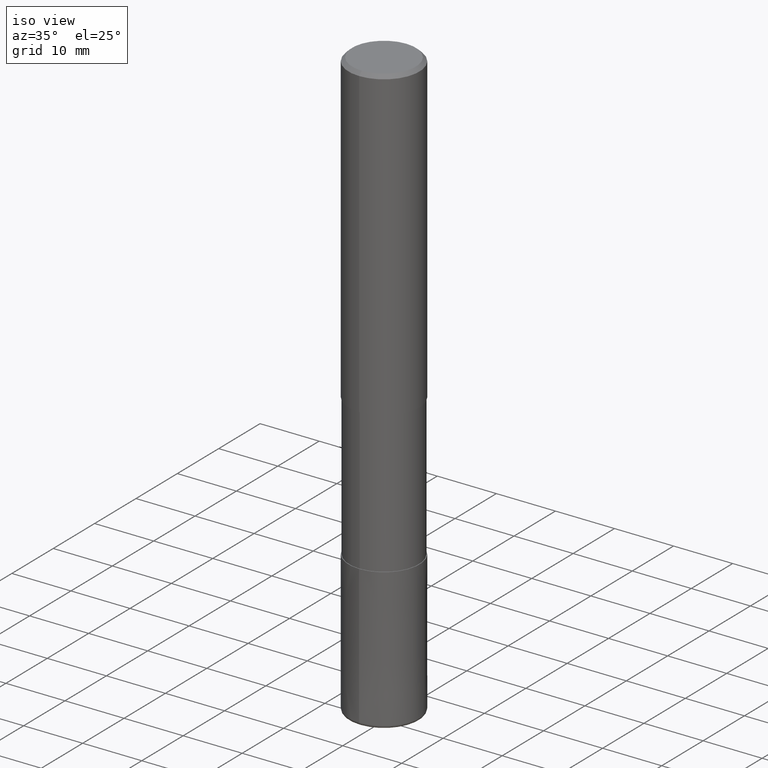
[diagram: clean part render]
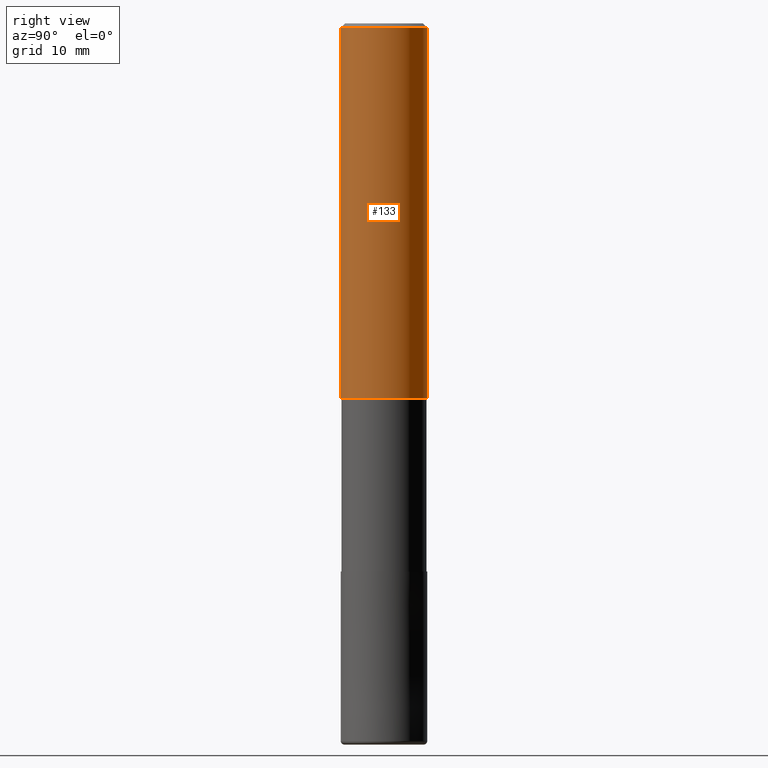
[diagram: tour spotlight — one face highlighted and labeled with its STEP entity id]
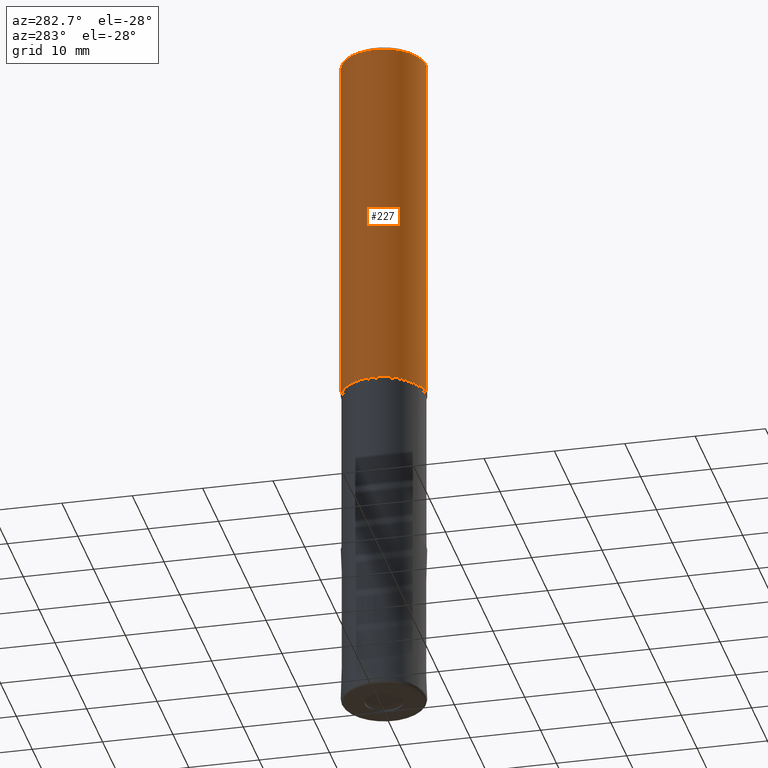
[diagram: tour spotlight — one face highlighted and labeled with its STEP entity id]
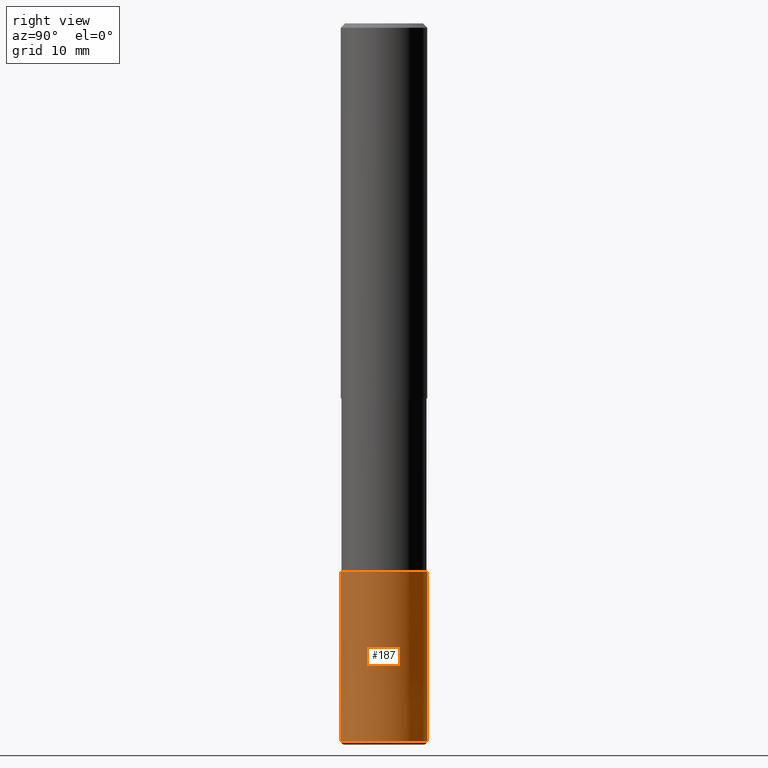
[diagram: tour spotlight — one face highlighted and labeled with its STEP entity id]
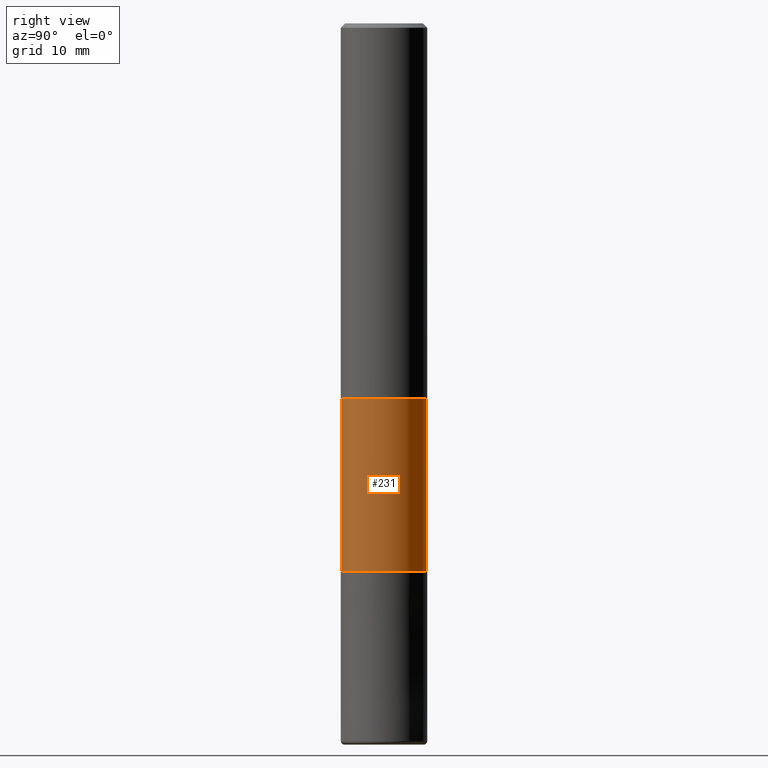
[diagram: tour spotlight — one face highlighted and labeled with its STEP entity id]
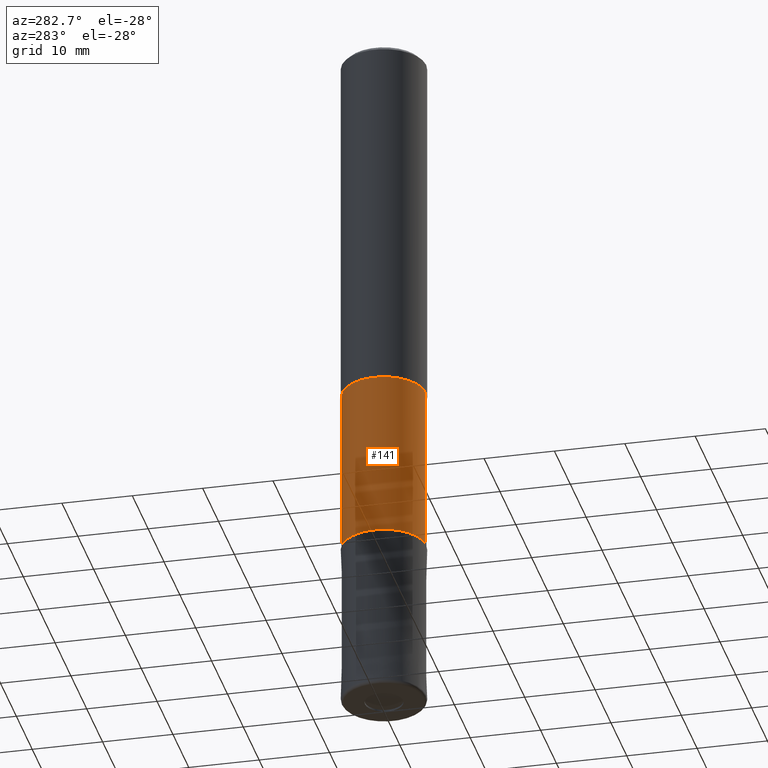
[diagram: tour spotlight — one face highlighted and labeled with its STEP entity id]
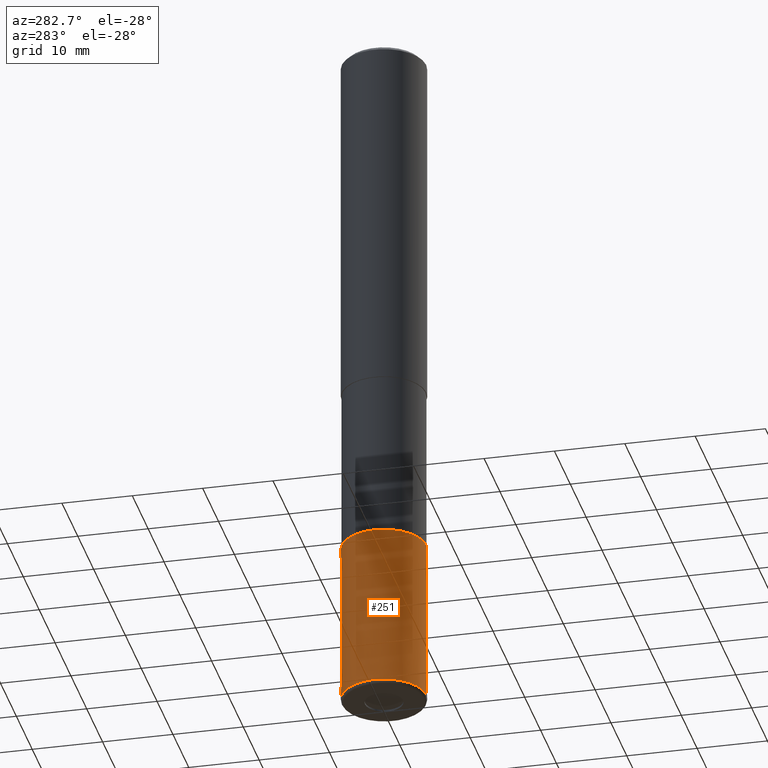
[diagram: tour spotlight — one face highlighted and labeled with its STEP entity id]
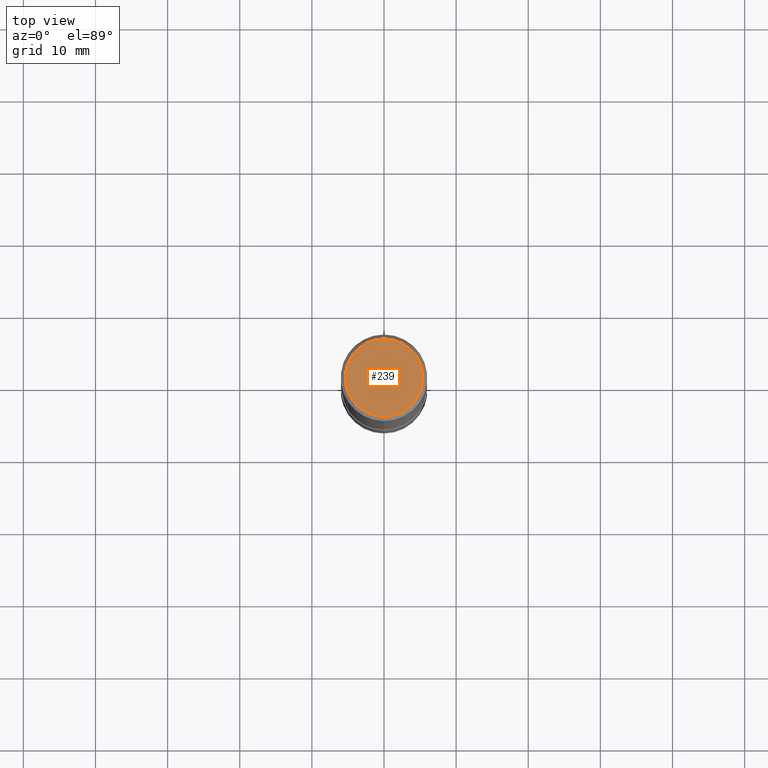
[diagram: tour spotlight — one face highlighted and labeled with its STEP entity id]
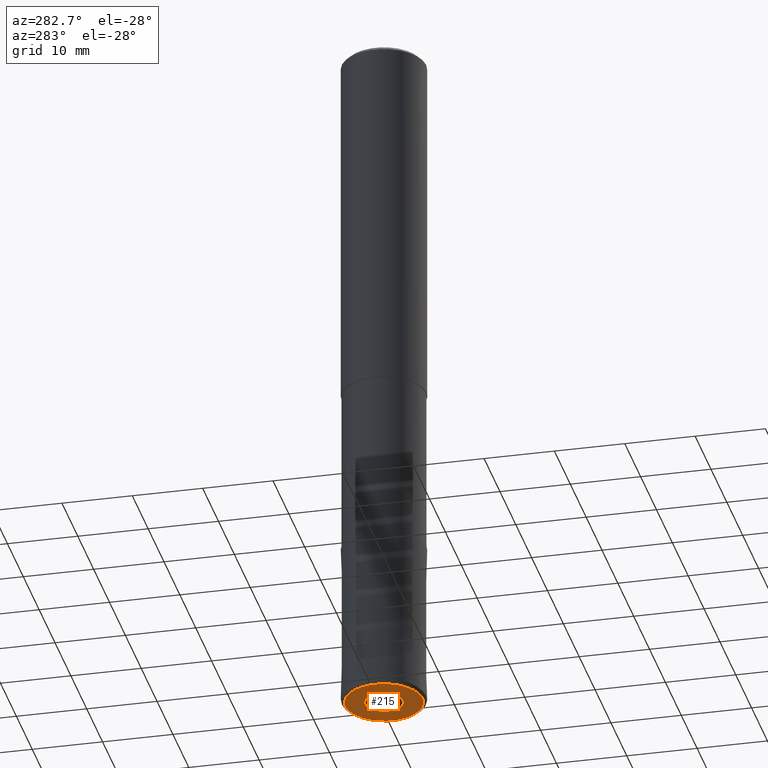
[diagram: tour spotlight — one face highlighted and labeled with its STEP entity id]
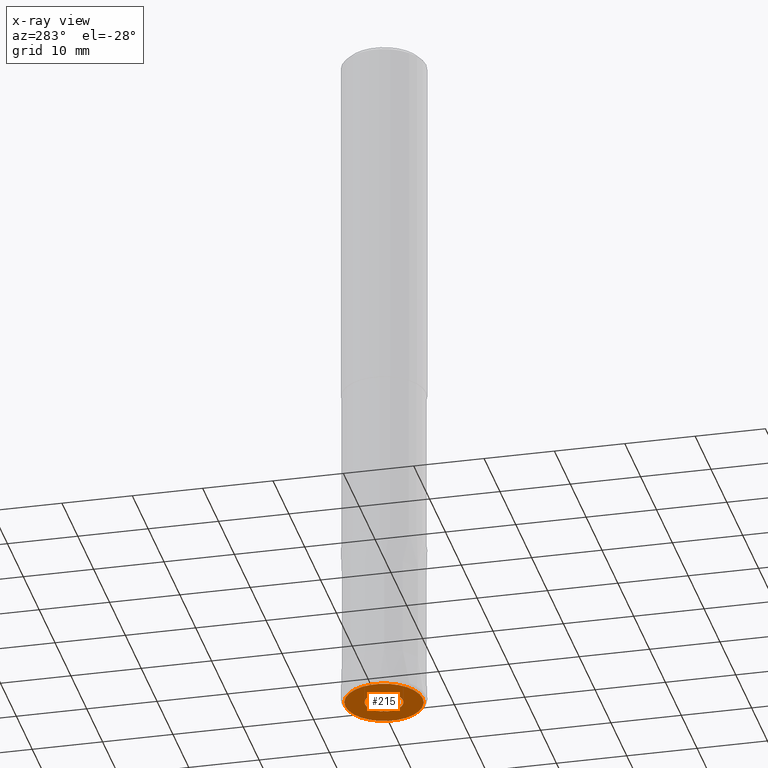
[diagram: x-ray of the same camera — body ghosted, this tour face saturated]
A machine part: a face-by-face anatomy tour. The part has 20 B-rep faces; the first image is the clean iso view, then the 8 largest visible faces are spotlighted one at a time (largest first), each with its STEP entity span.

Face 1 — right view, entity #133. In plain terms, the highlighted cylindrical surface (partial cylindrical patch) has radius 6 mm, axis along (-0, -0, 1).
Definition (entity closure, byte-faithful):
#123=EDGE_CURVE('',#157,#235,#311,.T.);
#133=ADVANCED_FACE('',(#321),#322,.T.);
#151=EDGE_CURVE('',#171,#157,#343,.T.);
#157=VERTEX_POINT('',#350);
#165=VERTEX_POINT('',#358);
#171=VERTEX_POINT('',#364);
#179=EDGE_CURVE('',#165,#235,#373,.T.);
#199=EDGE_CURVE('',#165,#171,#396,.T.);
#235=VERTEX_POINT('',#441);
#311=LINE('',#518,#519);
#321=FACE_OUTER_BOUND('',#531,.T.);
#322=CYLINDRICAL_SURFACE('',#532,6.0);
#343=CIRCLE('',#558,6.0);
#350=CARTESIAN_POINT('',(7.34763812293426E-016,-6.0,-52.0));
#358=CARTESIAN_POINT('',(0.0,6.0,-0.600000000000001));
#364=CARTESIAN_POINT('',(0.0,6.0,-52.0));
#373=CIRCLE('',#595,6.0);
#396=LINE('',#624,#625);
#441=CARTESIAN_POINT('',(7.34763812293426E-016,-6.0,-0.600000000000001));
#518=CARTESIAN_POINT('',(7.34763812293426E-016,-6.0,-26.3));
#519=VECTOR('',#759,1.0);
#531=EDGE_LOOP('',(#762,#763,#764,#765));
#532=AXIS2_PLACEMENT_3D('',#766,#767,#768);
#558=AXIS2_PLACEMENT_3D('',#803,#804,#805);
#595=AXIS2_PLACEMENT_3D('',#835,#836,#837);
#624=CARTESIAN_POINT('',(-7.34763812293426E-016,6.0,-26.3));
#625=VECTOR('',#863,1.0);
#759=DIRECTION('',(-0.0,-0.0,1.0));
#762=ORIENTED_EDGE('',*,*,#199,.F.);
#763=ORIENTED_EDGE('',*,*,#179,.T.);
#764=ORIENTED_EDGE('',*,*,#123,.F.);
#765=ORIENTED_EDGE('',*,*,#151,.F.);
#766=CARTESIAN_POINT('',(0.0,0.0,-26.3));
#767=DIRECTION('',(-0.0,-0.0,1.0));
#768=DIRECTION('',(0.0,1.0,0.0));
#803=CARTESIAN_POINT('',(0.0,0.0,-52.0));
#804=DIRECTION('',(0.0,0.0,-1.0));
#805=DIRECTION('',(0.0,1.0,0.0));
#835=CARTESIAN_POINT('',(0.0,0.0,-0.600000000000001));
#836=DIRECTION('',(0.0,0.0,-1.0));
#837=DIRECTION('',(0.0,1.0,0.0));
#863=DIRECTION('',(0.0,0.0,-1.0));

Face 2 — auxiliary view, entity #227. In plain terms, the highlighted cylindrical surface (partial cylindrical patch) has radius 6 mm, axis along (-0, -0, 1).
Definition (entity closure, byte-faithful):
#123=EDGE_CURVE('',#157,#235,#311,.T.);
#157=VERTEX_POINT('',#350);
#165=VERTEX_POINT('',#358);
#171=VERTEX_POINT('',#364);
#199=EDGE_CURVE('',#165,#171,#396,.T.);
#219=EDGE_CURVE('',#235,#165,#421,.T.);
#227=ADVANCED_FACE('',(#431),#432,.T.);
#235=VERTEX_POINT('',#441);
#281=EDGE_CURVE('',#157,#171,#491,.T.);
#311=LINE('',#518,#519);
#350=CARTESIAN_POINT('',(7.34763812293426E-016,-6.0,-52.0));
#358=CARTESIAN_POINT('',(0.0,6.0,-0.600000000000001));
#364=CARTESIAN_POINT('',(0.0,6.0,-52.0));
#396=LINE('',#624,#625);
#421=CIRCLE('',#656,6.0);
#431=FACE_OUTER_BOUND('',#669,.T.);
#432=CYLINDRICAL_SURFACE('',#670,6.0);
#441=CARTESIAN_POINT('',(7.34763812293426E-016,-6.0,-0.600000000000001));
#491=CIRCLE('',#742,6.0);
#518=CARTESIAN_POINT('',(7.34763812293426E-016,-6.0,-26.3));
#519=VECTOR('',#759,1.0);
#624=CARTESIAN_POINT('',(-7.34763812293426E-016,6.0,-26.3));
#625=VECTOR('',#863,1.0);
#656=AXIS2_PLACEMENT_3D('',#902,#903,#904);
#669=EDGE_LOOP('',(#918,#919,#920,#921));
#670=AXIS2_PLACEMENT_3D('',#922,#923,#924);
#742=AXIS2_PLACEMENT_3D('',#984,#985,#986);
#759=DIRECTION('',(-0.0,-0.0,1.0));
#863=DIRECTION('',(0.0,0.0,-1.0));
#902=CARTESIAN_POINT('',(0.0,0.0,-0.600000000000001));
#903=DIRECTION('',(0.0,0.0,-1.0));
#904=DIRECTION('',(0.0,1.0,0.0));
#918=ORIENTED_EDGE('',*,*,#199,.T.);
#919=ORIENTED_EDGE('',*,*,#281,.F.);
#920=ORIENTED_EDGE('',*,*,#123,.T.);
#921=ORIENTED_EDGE('',*,*,#219,.T.);
#922=CARTESIAN_POINT('',(0.0,0.0,-26.3));
#923=DIRECTION('',(-0.0,-0.0,1.0));
#924=DIRECTION('',(0.0,1.0,0.0));
#984=CARTESIAN_POINT('',(0.0,0.0,-52.0));
#985=DIRECTION('',(0.0,0.0,-1.0));
#986=DIRECTION('',(0.0,1.0,0.0));

Face 3 — right view, entity #187. In plain terms, the highlighted conical surface has half-angle 0 deg.
Definition (entity closure, byte-faithful):
#119=EDGE_CURVE('',#127,#247,#306,.T.);
#127=VERTEX_POINT('',#315);
#147=EDGE_CURVE('',#161,#127,#338,.T.);
#161=VERTEX_POINT('',#354);
#187=ADVANCED_FACE('',(#383),#384,.T.);
#189=VERTEX_POINT('',#386);
#217=EDGE_CURVE('',#189,#247,#419,.T.);
#221=EDGE_CURVE('',#189,#161,#423,.T.);
#247=VERTEX_POINT('',#454);
#306=LINE('',#511,#512);
#315=CARTESIAN_POINT('',(7.34763812293426E-016,-6.0,-99.5));
#338=CIRCLE('',#552,6.0);
#354=CARTESIAN_POINT('',(0.0,6.0,-99.5));
#383=FACE_OUTER_BOUND('',#608,.T.);
#384=CONICAL_SURFACE('',#609,5.99995,4.25531914890057E-006);
#386=CARTESIAN_POINT('',(0.0,5.9999,-76.0));
#419=CIRCLE('',#653,5.9999);
#423=LINE('',#659,#660);
#454=CARTESIAN_POINT('',(7.34751566229888E-016,-5.9999,-76.0));
#511=CARTESIAN_POINT('',(7.34757689261657E-016,-5.99995,-87.75));
#512=VECTOR('',#750,1.0);
#552=AXIS2_PLACEMENT_3D('',#794,#795,#796);
#608=EDGE_LOOP('',(#851,#852,#853,#854));
#609=AXIS2_PLACEMENT_3D('',#855,#856,#857);
#653=AXIS2_PLACEMENT_3D('',#899,#900,#901);
#659=CARTESIAN_POINT('',(-7.34757689261657E-016,5.99995,-87.75));
#660=VECTOR('',#905,1.0);
#750=DIRECTION('',(-5.21109086726994E-022,4.25531914888773E-006,0.999999999990946));
#794=CARTESIAN_POINT('',(0.0,0.0,-99.5));
#795=DIRECTION('',(0.0,0.0,-1.0));
#796=DIRECTION('',(0.0,1.0,0.0));
#851=ORIENTED_EDGE('',*,*,#221,.F.);
#852=ORIENTED_EDGE('',*,*,#217,.T.);
#853=ORIENTED_EDGE('',*,*,#119,.F.);
#854=ORIENTED_EDGE('',*,*,#147,.F.);
#855=CARTESIAN_POINT('',(0.0,0.0,-87.75));
#856=DIRECTION('',(0.0,-0.0,-1.0));
#857=DIRECTION('',(0.0,1.0,0.0));
#899=CARTESIAN_POINT('',(0.0,0.0,-76.0));
#900=DIRECTION('',(0.0,0.0,-1.0));
#901=DIRECTION('',(0.0,1.0,0.0));
#905=DIRECTION('',(-5.21109086726994E-022,4.25531914888773E-006,-0.999999999990946));

Face 4 — right view, entity #231. In plain terms, the highlighted cylindrical surface (partial cylindrical patch) has radius 5.8999 mm, axis along (-0, -0, 1).
Definition (entity closure, byte-faithful):
#131=VERTEX_POINT('',#319);
#163=EDGE_CURVE('',#241,#131,#356,.T.);
#169=VERTEX_POINT('',#362);
#193=EDGE_CURVE('',#241,#169,#390,.T.);
#197=VERTEX_POINT('',#394);
#231=ADVANCED_FACE('',(#436),#437,.T.);
#241=VERTEX_POINT('',#448);
#255=EDGE_CURVE('',#197,#131,#464,.T.);
#257=EDGE_CURVE('',#169,#197,#466,.T.);
#319=CARTESIAN_POINT('',(7.22511625723433E-016,-5.89995,-52.0));
#356=CIRCLE('',#573,5.89995);
#362=CARTESIAN_POINT('',(0.0,5.89995,-76.0));
#390=LINE('',#617,#618);
#394=CARTESIAN_POINT('',(7.22511625723433E-016,-5.89995,-76.0));
#436=FACE_OUTER_BOUND('',#675,.T.);
#437=CYLINDRICAL_SURFACE('',#676,5.89995);
#448=CARTESIAN_POINT('',(0.0,5.89995,-52.0));
#464=LINE('',#705,#706);
#466=CIRCLE('',#709,5.89995);
#573=AXIS2_PLACEMENT_3D('',#817,#818,#819);
#617=CARTESIAN_POINT('',(-7.22511625723433E-016,5.89995,-64.0));
#618=VECTOR('',#861,1.0);
#675=EDGE_LOOP('',(#929,#930,#931,#932));
#676=AXIS2_PLACEMENT_3D('',#933,#934,#935);
#705=CARTESIAN_POINT('',(7.22511625723433E-016,-5.89995,-64.0));
#706=VECTOR('',#961,1.0);
#709=AXIS2_PLACEMENT_3D('',#962,#963,#964);
#817=CARTESIAN_POINT('',(0.0,0.0,-52.0));
#818=DIRECTION('',(0.0,0.0,-1.0));
#819=DIRECTION('',(0.0,1.0,0.0));
#861=DIRECTION('',(0.0,0.0,-1.0));
#929=ORIENTED_EDGE('',*,*,#193,.F.);
#930=ORIENTED_EDGE('',*,*,#163,.T.);
#931=ORIENTED_EDGE('',*,*,#255,.F.);
#932=ORIENTED_EDGE('',*,*,#257,.F.);
#933=CARTESIAN_POINT('',(0.0,0.0,-64.0));
#934=DIRECTION('',(-0.0,-0.0,1.0));
#935=DIRECTION('',(0.0,1.0,0.0));
#961=DIRECTION('',(-0.0,-0.0,1.0));
#962=CARTESIAN_POINT('',(0.0,0.0,-76.0));
#963=DIRECTION('',(0.0,0.0,-1.0));
#964=DIRECTION('',(0.0,1.0,0.0));

Face 5 — auxiliary view, entity #141. In plain terms, the highlighted cylindrical surface (partial cylindrical patch) has radius 5.8999 mm, axis along (-0, -0, 1).
Definition (entity closure, byte-faithful):
#131=VERTEX_POINT('',#319);
#135=EDGE_CURVE('',#197,#169,#324,.T.);
#141=ADVANCED_FACE('',(#330),#331,.T.);
#169=VERTEX_POINT('',#362);
#193=EDGE_CURVE('',#241,#169,#390,.T.);
#197=VERTEX_POINT('',#394);
#241=VERTEX_POINT('',#448);
#255=EDGE_CURVE('',#197,#131,#464,.T.);
#259=EDGE_CURVE('',#131,#241,#468,.T.);
#319=CARTESIAN_POINT('',(7.22511625723433E-016,-5.89995,-52.0));
#324=CIRCLE('',#535,5.89995);
#330=FACE_OUTER_BOUND('',#542,.T.);
#331=CYLINDRICAL_SURFACE('',#543,5.89995);
#362=CARTESIAN_POINT('',(0.0,5.89995,-76.0));
#390=LINE('',#617,#618);
#394=CARTESIAN_POINT('',(7.22511625723433E-016,-5.89995,-76.0));
#448=CARTESIAN_POINT('',(0.0,5.89995,-52.0));
#464=LINE('',#705,#706);
#468=CIRCLE('',#712,5.89995);
#535=AXIS2_PLACEMENT_3D('',#769,#770,#771);
#542=EDGE_LOOP('',(#776,#777,#778,#779));
#543=AXIS2_PLACEMENT_3D('',#780,#781,#782);
#617=CARTESIAN_POINT('',(-7.22511625723433E-016,5.89995,-64.0));
#618=VECTOR('',#861,1.0);
#705=CARTESIAN_POINT('',(7.22511625723433E-016,-5.89995,-64.0));
#706=VECTOR('',#961,1.0);
#712=AXIS2_PLACEMENT_3D('',#965,#966,#967);
#769=CARTESIAN_POINT('',(0.0,0.0,-76.0));
#770=DIRECTION('',(0.0,0.0,-1.0));
#771=DIRECTION('',(0.0,1.0,0.0));
#776=ORIENTED_EDGE('',*,*,#193,.T.);
#777=ORIENTED_EDGE('',*,*,#135,.F.);
#778=ORIENTED_EDGE('',*,*,#255,.T.);
#779=ORIENTED_EDGE('',*,*,#259,.T.);
#780=CARTESIAN_POINT('',(0.0,0.0,-64.0));
#781=DIRECTION('',(-0.0,-0.0,1.0));
#782=DIRECTION('',(0.0,1.0,0.0));
#861=DIRECTION('',(0.0,0.0,-1.0));
#961=DIRECTION('',(-0.0,-0.0,1.0));
#965=CARTESIAN_POINT('',(0.0,0.0,-52.0));
#966=DIRECTION('',(0.0,0.0,-1.0));
#967=DIRECTION('',(0.0,1.0,0.0));

Face 6 — auxiliary view, entity #251. In plain terms, the highlighted conical surface has half-angle 0 deg.
Definition (entity closure, byte-faithful):
#117=EDGE_CURVE('',#127,#161,#304,.T.);
#119=EDGE_CURVE('',#127,#247,#306,.T.);
#127=VERTEX_POINT('',#315);
#161=VERTEX_POINT('',#354);
#189=VERTEX_POINT('',#386);
#211=EDGE_CURVE('',#247,#189,#411,.T.);
#221=EDGE_CURVE('',#189,#161,#423,.T.);
#247=VERTEX_POINT('',#454);
#251=ADVANCED_FACE('',(#458),#459,.T.);
#304=CIRCLE('',#508,6.0);
#306=LINE('',#511,#512);
#315=CARTESIAN_POINT('',(7.34763812293426E-016,-6.0,-99.5));
#354=CARTESIAN_POINT('',(0.0,6.0,-99.5));
#386=CARTESIAN_POINT('',(0.0,5.9999,-76.0));
#411=CIRCLE('',#643,5.9999);
#423=LINE('',#659,#660);
#454=CARTESIAN_POINT('',(7.34751566229888E-016,-5.9999,-76.0));
#458=FACE_OUTER_BOUND('',#698,.T.);
#459=CONICAL_SURFACE('',#699,5.99995,4.25531914890057E-006);
#508=AXIS2_PLACEMENT_3D('',#747,#748,#749);
#511=CARTESIAN_POINT('',(7.34757689261657E-016,-5.99995,-87.75));
#512=VECTOR('',#750,1.0);
#643=AXIS2_PLACEMENT_3D('',#885,#886,#887);
#659=CARTESIAN_POINT('',(-7.34757689261657E-016,5.99995,-87.75));
#660=VECTOR('',#905,1.0);
#698=EDGE_LOOP('',(#946,#947,#948,#949));
#699=AXIS2_PLACEMENT_3D('',#950,#951,#952);
#747=CARTESIAN_POINT('',(0.0,0.0,-99.5));
#748=DIRECTION('',(0.0,0.0,-1.0));
#749=DIRECTION('',(0.0,1.0,0.0));
#750=DIRECTION('',(-5.21109086726994E-022,4.25531914888773E-006,0.999999999990946));
#885=CARTESIAN_POINT('',(0.0,0.0,-76.0));
#886=DIRECTION('',(0.0,0.0,-1.0));
#887=DIRECTION('',(0.0,1.0,0.0));
#905=DIRECTION('',(-5.21109086726994E-022,4.25531914888773E-006,-0.999999999990946));
#946=ORIENTED_EDGE('',*,*,#221,.T.);
#947=ORIENTED_EDGE('',*,*,#117,.F.);
#948=ORIENTED_EDGE('',*,*,#119,.T.);
#949=ORIENTED_EDGE('',*,*,#211,.T.);
#950=CARTESIAN_POINT('',(0.0,0.0,-87.75));
#951=DIRECTION('',(0.0,-0.0,-1.0));
#952=DIRECTION('',(0.0,1.0,0.0));

Face 7 — top view, entity #239. In plain terms, the highlighted planar face has unit normal (-0, 0, 1).
Definition (entity closure, byte-faithful):
#159=EDGE_CURVE('',#275,#261,#352,.T.);
#201=EDGE_CURVE('',#261,#275,#398,.T.);
#239=ADVANCED_FACE('',(#445),#446,.T.);
#261=VERTEX_POINT('',#470);
#275=VERTEX_POINT('',#485);
#352=CIRCLE('',#568,5.4);
#398=CIRCLE('',#628,5.4);
#445=FACE_OUTER_BOUND('',#685,.T.);
#446=PLANE('',#686);
#470=CARTESIAN_POINT('',(0.0,5.4,0.0));
#485=CARTESIAN_POINT('',(6.61287431064084E-016,-5.4,0.0));
#568=AXIS2_PLACEMENT_3D('',#814,#815,#816);
#628=AXIS2_PLACEMENT_3D('',#864,#865,#866);
#685=EDGE_LOOP('',(#940,#941));
#686=AXIS2_PLACEMENT_3D('',#942,#943,#944);
#814=CARTESIAN_POINT('',(0.0,0.0,0.0));
#815=DIRECTION('',(0.0,0.0,-1.0));
#816=DIRECTION('',(0.0,1.0,0.0));
#864=CARTESIAN_POINT('',(0.0,0.0,0.0));
#865=DIRECTION('',(0.0,0.0,-1.0));
#866=DIRECTION('',(0.0,1.0,0.0));
#940=ORIENTED_EDGE('',*,*,#201,.F.);
#941=ORIENTED_EDGE('',*,*,#159,.F.);
#942=CARTESIAN_POINT('',(0.0,2.7,0.0));
#943=DIRECTION('',(-0.0,0.0,1.0));
#944=DIRECTION('',(0.0,-1.0,0.0));

Face 8 — auxiliary view, entity #215. An x-ray twin of the same camera follows (body ghosted, this face saturated) — the face is partly hidden behind the body. In plain terms, the highlighted planar face has unit normal (0, 0, -1).
Definition (entity closure, byte-faithful):
#125=VERTEX_POINT('',#313);
#153=VERTEX_POINT('',#345);
#191=EDGE_CURVE('',#249,#237,#388,.T.);
#213=EDGE_CURVE('',#125,#153,#413,.T.);
#215=ADVANCED_FACE('',(#415,#416),#417,.T.);
#225=EDGE_CURVE('',#237,#249,#429,.T.);
#237=VERTEX_POINT('',#443);
#249=VERTEX_POINT('',#456);
#277=EDGE_CURVE('',#153,#125,#487,.T.);
#313=CARTESIAN_POINT('',(0.0,5.5,-100.0));
#345=CARTESIAN_POINT('',(6.73533494602307E-016,-5.5,-100.0));
#388=CIRCLE('',#614,2.7);
#413=CIRCLE('',#646,5.5);
#415=FACE_BOUND('',#648,.T.);
#416=FACE_OUTER_BOUND('',#649,.T.);
#417=PLANE('',#650);
#429=CIRCLE('',#667,2.7);
#443=CARTESIAN_POINT('',(0.0,2.7,-100.0));
#456=CARTESIAN_POINT('',(3.30643715532042E-016,-2.7,-100.0));
#487=CIRCLE('',#737,5.5);
#614=AXIS2_PLACEMENT_3D('',#858,#859,#860);
#646=AXIS2_PLACEMENT_3D('',#888,#889,#890);
#648=EDGE_LOOP('',(#892,#893));
#649=EDGE_LOOP('',(#894,#895));
#650=AXIS2_PLACEMENT_3D('',#896,#897,#898);
#667=AXIS2_PLACEMENT_3D('',#914,#915,#916);
#737=AXIS2_PLACEMENT_3D('',#981,#982,#983);
#858=CARTESIAN_POINT('',(0.0,0.0,-100.0));
#859=DIRECTION('',(0.0,0.0,-1.0));
#860=DIRECTION('',(0.0,1.0,0.0));
#888=CARTESIAN_POINT('',(0.0,0.0,-100.0));
#889=DIRECTION('',(0.0,0.0,-1.0));
#890=DIRECTION('',(0.0,1.0,0.0));
#892=ORIENTED_EDGE('',*,*,#225,.F.);
#893=ORIENTED_EDGE('',*,*,#191,.F.);
#894=ORIENTED_EDGE('',*,*,#213,.T.);
#895=ORIENTED_EDGE('',*,*,#277,.T.);
#896=CARTESIAN_POINT('',(0.0,4.1,-100.0));
#897=DIRECTION('',(0.0,0.0,-1.0));
#898=DIRECTION('',(0.0,1.0,0.0));
#914=CARTESIAN_POINT('',(0.0,0.0,-100.0));
#915=DIRECTION('',(0.0,0.0,-1.0));
#916=DIRECTION('',(0.0,1.0,0.0));
#981=CARTESIAN_POINT('',(0.0,0.0,-100.0));
#982=DIRECTION('',(0.0,0.0,-1.0));
#983=DIRECTION('',(0.0,1.0,0.0));